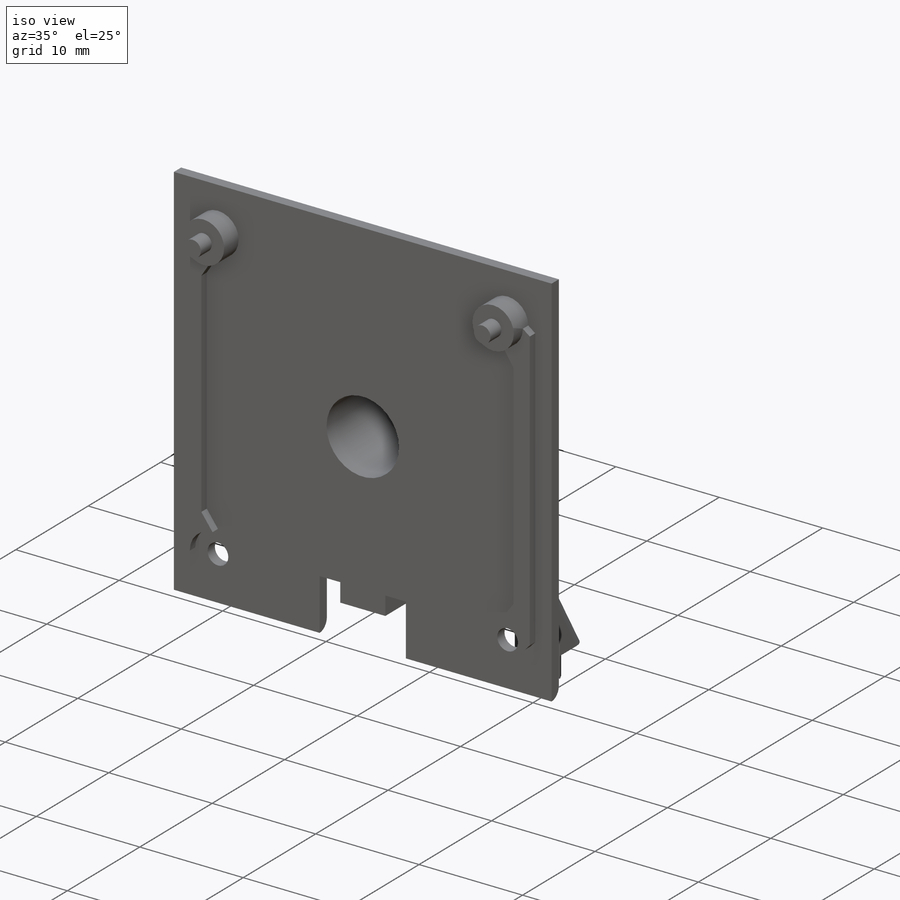
[diagram: iso view]
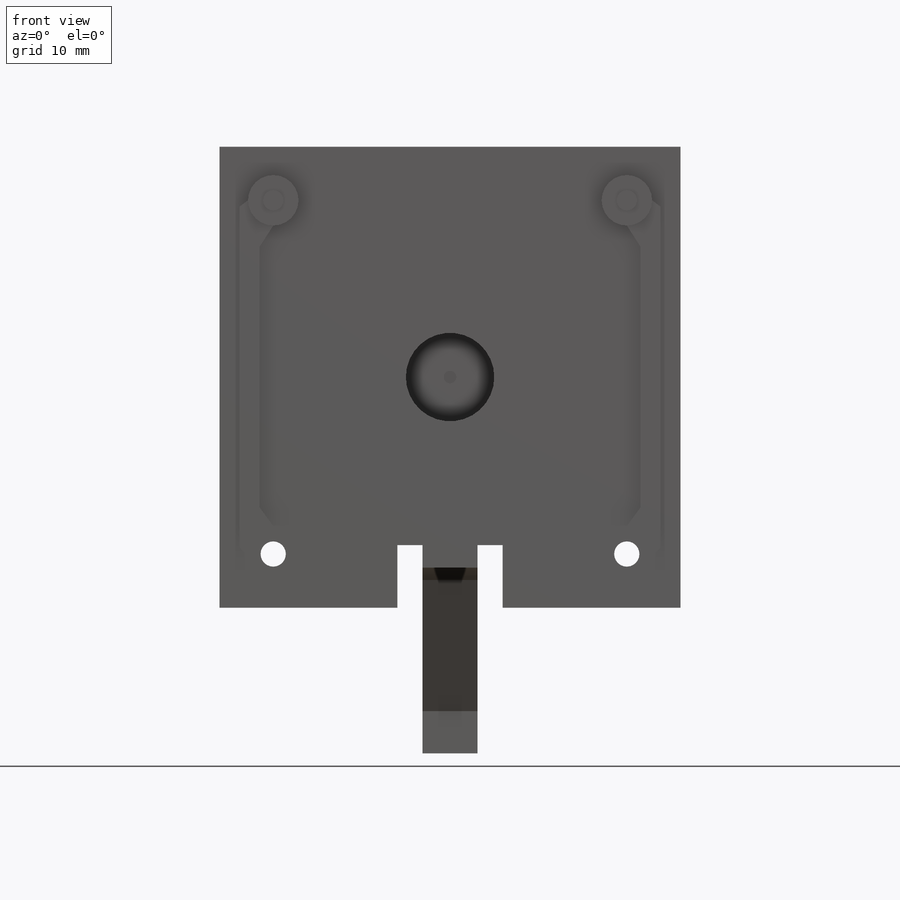
[diagram: front view]
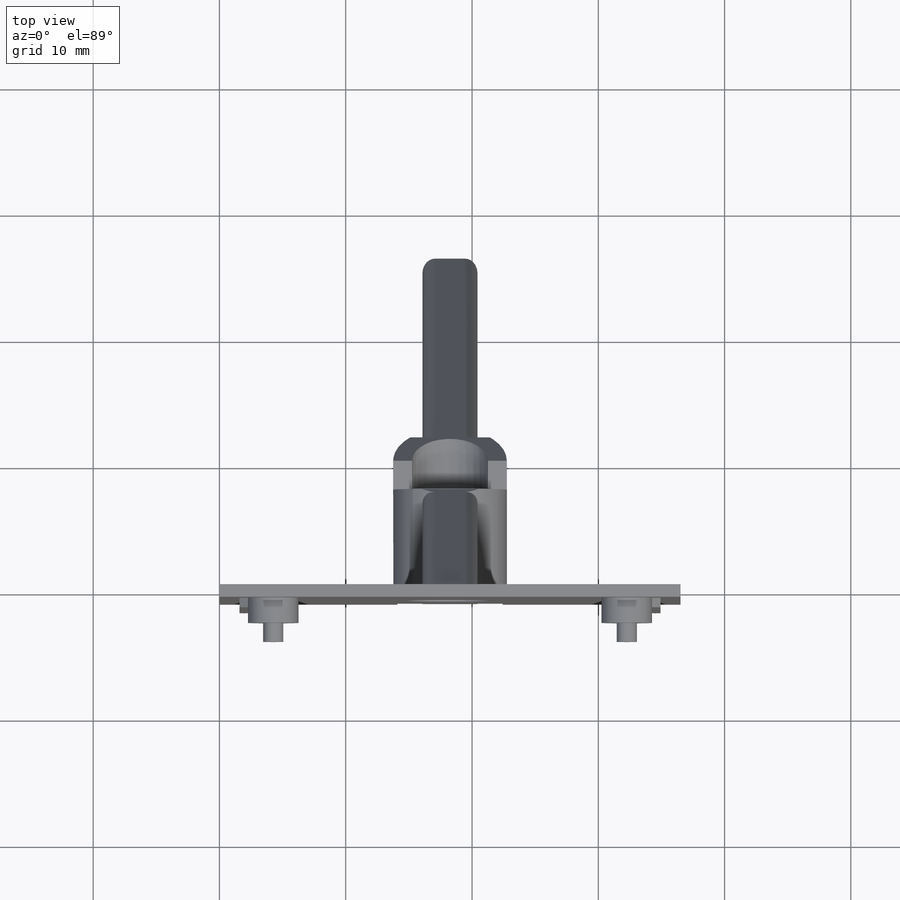
[diagram: top view]
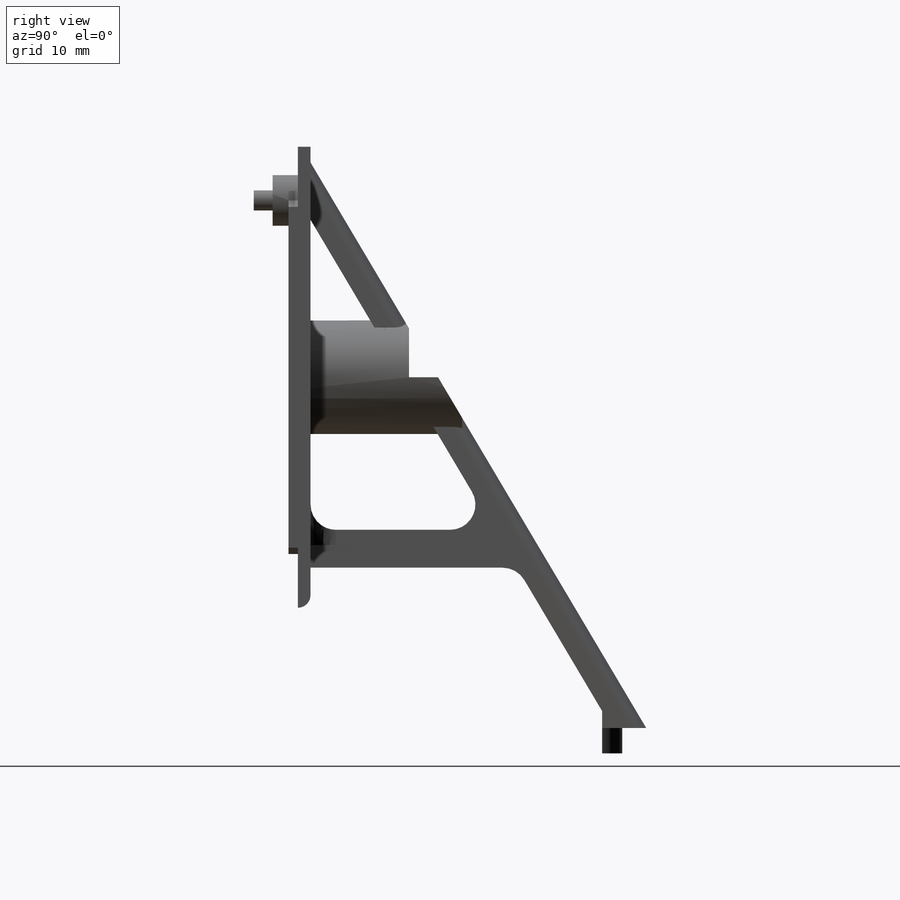
[diagram: right view]
SOLIDWORKS PART (.sldprt)
format: sldprt  version: not decoded by parser v0  size: 935,424 bytes
history: native  units: mm
features: sketch x19, cut_extrude x10, extrude x9, fillet x2, material x1 (+16 scaffold rows collapsed)
feature tree (57):
  scaffold x16  (default folders/planes/origin — collapsed)
  material  "Material <not specified>"
  sketch  "Sketch1"  dims[D1=36.5125mm]
  extrude  "Extrude1"  Depth=1mm
  sketch  "Sketch2"  dims[D5=~2.226718mm D1=14.0mm D2=14.0mm D3=14.0mm D4=14.0mm]
  extrude  "Extrude2"  Depth=2mm
  sketch  "Sketch3"  dims[D3=~2.193808mm D1=14.0mm D2=14.0mm]
  extrude  "Extrude3"  Depth=0.75mm
  sketch  "Sketch4"  dims[D3=~0.50625mm D1=14.0mm D2=14.0mm]
  cut_extrude  "Extrude4"  [1 undecoded]
  sketch  "Sketch5"  dims[D1=~0.715946mm]
  extrude  "Extrude5"  Depth=1.5mm
  sketch  "Sketch6"
  cut_extrude  "Extrude6"  [1 undecoded]
  sketch  "Sketch7"  dims[D1=3.0mm]
  extrude  "Extrude7"  Depth=19mm
  sketch  "Sketch8"  dims[D1=8.0mm]
  cut_extrude  "Extrude8"  [1 undecoded]
  sketch  "Sketch9"  dims[D1=2.1mm]
  extrude  "Extrude9"  Depth=17mm
  sketch  "Sketch10"
  cut_extrude  "Extrude10"  [1 undecoded]
  sketch  "Sketch11"  dims[D1=~7.670143mm]
  extrude  "Extrude11"  Depth=12mm
  sketch  "Sketch12"  dims[D1=~1.122532mm]
  cut_extrude  "Extrude12"  Depth=4.2mm
  sketch  "Sketch13"
  cut_extrude  "Extrude13"  Depth=4.5mm
  sketch  "Sketch15"  dims[D1=~3.014336mm]
  cut_extrude  "Extrude14"  Depth=7.5mm
  sketch  "Sketch16"  dims[D1=1.0mm]
  cut_extrude  "Extrude15"  Depth=0.3mm
  sketch  "Sketch17"  dims[c1.D2=~1.85994mm c1.D1=~23.390021mm c2.D2=0.7mm]
  extrude  "Extrude16"  Depth=2mm
  sketch  "Sketch18"
  extrude  "Extrude17"  Depth=5mm
  sketch  "Sketch19"
  cut_extrude  "Extrude18"  [1 undecoded]
  fillet  "Fillet2"  Radius=1mm
  fillet  "Fillet3"  Radius=2mm
  sketch  "Sketch20"
  cut_extrude  "Extrude19"  [1 undecoded]
decode coverage: 28 of 40 modeling features carry decoded parameters
note: ~ marks probable driven/reference dimensions
note: 6 parameter values undecoded
summary: no parameter record found for 6 features
note: suppression state not decoded; provenance and decode notes live in map.json
